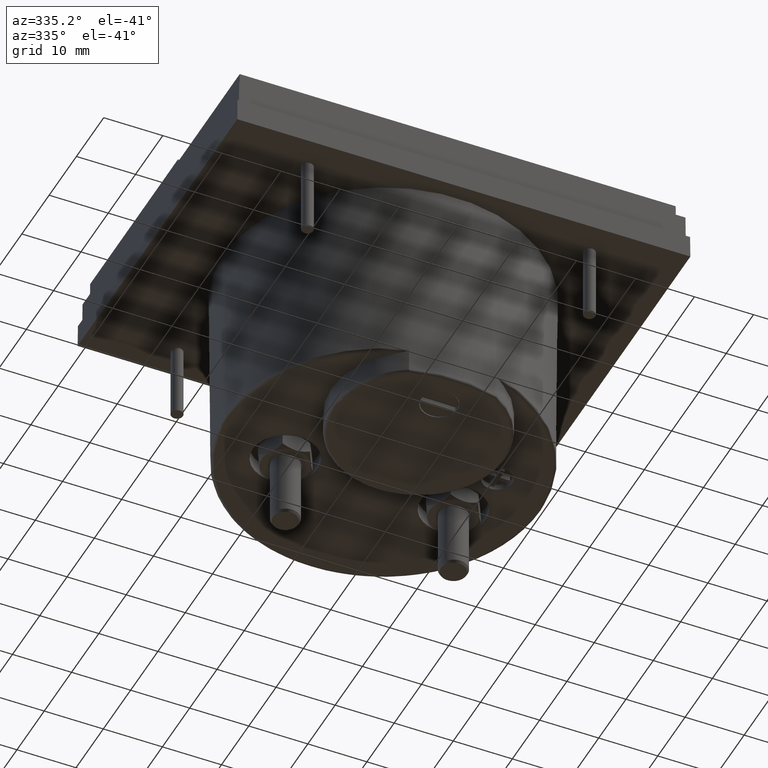
[diagram: clean part render]
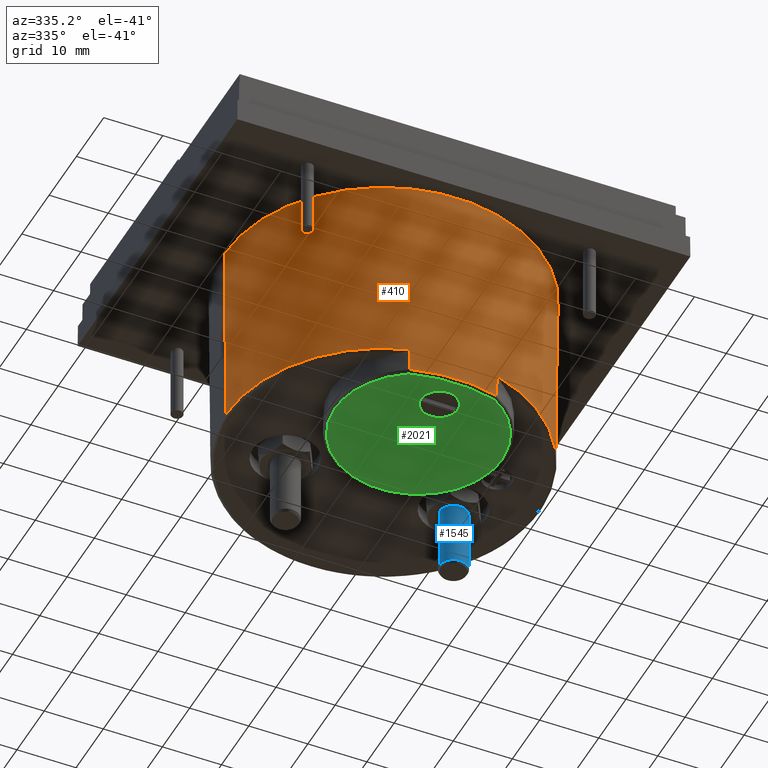
[diagram: same view with three faces highlighted in distinct colors, each labeled with its STEP entity id]
A machine part, auxiliary view with three faces highlighted in distinct colors.
Their STEP definitions:

[orange] entity #410 — the highlighted conical surface has half-angle 0.5 deg.
#19 = CARTESIAN_POINT ( 'NONE',  ( 0.2917813320034607916, -0.1900923783822273117, -1.710408002665992244 ) ) ;
#79 = DIRECTION ( 'NONE',  ( -1.000000000000000000, 0.000000000000000000, -7.553504680715287121E-15 ) ) ;
#128 = CONICAL_SURFACE ( 'NONE', #418, 1.059999999999999831, 0.008726646249999938515 ) ;
#288 = CARTESIAN_POINT ( 'NONE',  ( -0.2923328206291994635, -0.1913633574854115560, -1.552927687706716853 ) ) ;
#410 = ADVANCED_FACE ( 'NONE', ( #3003 ), #128, .T. ) ;
#418 = AXIS2_PLACEMENT_3D ( 'NONE', #1137, #2043, #5759 ) ;
#428 = CARTESIAN_POINT ( 'NONE',  ( 0.2923328206292112874, -0.1913633574854087249, -1.552927687706716853 ) ) ;
#957 = DIRECTION ( 'NONE',  ( 1.000000000000000000, 0.000000000000000000, 0.000000000000000000 ) ) ;
#1137 = CARTESIAN_POINT ( 'NONE',  ( 8.195543980992789655E-16, 0.8159055118110236648, -0.2732283464567021314 ) ) ;
#1157 = VERTEX_POINT ( 'NONE', #5092 ) ;
#1342 = CARTESIAN_POINT ( 'NONE',  ( 0.2919650909610897460, -0.1905160636664051943, -1.657914564347348074 ) ) ;
#1424 = ORIENTED_EDGE ( 'NONE', *, *, #3568, .T. ) ;
#1431 = EDGE_CURVE ( 'NONE', #2227, #1470, #4979, .T. ) ;
#1452 = EDGE_CURVE ( 'NONE', #2349, #1157, #1677, .T. ) ;
#1470 = VERTEX_POINT ( 'NONE', #5003 ) ;
#1479 = CARTESIAN_POINT ( 'NONE',  ( -0.2923328206291994635, -0.1913633574854115560, -1.552927687706716853 ) ) ;
#1648 = CARTESIAN_POINT ( 'NONE',  ( 1.060000000000000719, 0.8159055118110236648, -0.2732283464567021314 ) ) ;
#1677 = LINE ( 'NONE', #3967, #4098 ) ;
#1710 = DIRECTION ( 'NONE',  ( -0.008726535488402603624, 1.068692375351803275E-18, 0.9999619230642582401 ) ) ;
#1774 = CARTESIAN_POINT ( 'NONE',  ( 8.195543980992795572E-16, 0.8159055118110236648, -1.710408002667415772 ) ) ;
#1813 = AXIS2_PLACEMENT_3D ( 'NONE', #5225, #4695, #1892 ) ;
#1855 = ORIENTED_EDGE ( 'NONE', *, *, #4842, .T. ) ;
#1876 = VERTEX_POINT ( 'NONE', #428 ) ;
#1892 = DIRECTION ( 'NONE',  ( -1.000000000000000000, 0.000000000000000000, -7.553504680715287121E-15 ) ) ;
#1977 = VERTEX_POINT ( 'NONE', #3659 ) ;
#2043 = DIRECTION ( 'NONE',  ( -0.000000000000000000, 0.000000000000000000, 1.000000000000000000 ) ) ;
#2119 = ORIENTED_EDGE ( 'NONE', *, *, #2536, .T. ) ;
#2190 = CARTESIAN_POINT ( 'NONE',  ( 0.2917813320034607916, -0.1900923783822273117, -1.710408002665992244 ) ) ;
#2227 = VERTEX_POINT ( 'NONE', #1479 ) ;
#2349 = VERTEX_POINT ( 'NONE', #5247 ) ;
#2395 = VECTOR ( 'NONE', #5792, 39.37007874015748854 ) ;
#2455 = VERTEX_POINT ( 'NONE', #5890 ) ;
#2536 = EDGE_CURVE ( 'NONE', #1470, #5753, #4018, .T. ) ;
#2590 = CIRCLE ( 'NONE', #1813, 1.048832233049751261 ) ;
#2753 = EDGE_CURVE ( 'NONE', #2455, #1977, #4296, .T. ) ;
#3003 = FACE_OUTER_BOUND ( 'NONE', #5448, .T. ) ;
#3284 = DIRECTION ( 'NONE',  ( 0.000000000000000000, 0.000000000000000000, 1.000000000000000000 ) ) ;
#3552 = DIRECTION ( 'NONE',  ( -1.000000000000000000, 0.000000000000000000, 2.868881629112489169E-15 ) ) ;
#3568 = EDGE_CURVE ( 'NONE', #1876, #2455, #2590, .T. ) ;
#3641 = CIRCLE ( 'NONE', #4796, 1.048832233049751261 ) ;
#3659 = CARTESIAN_POINT ( 'NONE',  ( 1.060000000000000719, 0.8159055118110236648, -0.2732283464567021314 ) ) ;
#3692 = EDGE_CURVE ( 'NONE', #1977, #1157, #5089, .T. ) ;
#3878 = CARTESIAN_POINT ( 'NONE',  ( -0.2917813345756032906, -0.1900923776361859163, -1.710408002667384686 ) ) ;
#3967 = CARTESIAN_POINT ( 'NONE',  ( -1.059999999999999165, 0.8159055118110237759, -0.2732283464567021314 ) ) ;
#3994 = CARTESIAN_POINT ( 'NONE',  ( -0.2921489196474683081, -0.1909397236215286953, -1.605421126026988610 ) ) ;
#4018 = CIRCLE ( 'NONE', #5471, 1.047457923163013005 ) ;
#4098 = VECTOR ( 'NONE', #1710, 39.37007874015748854 ) ;
#4195 = ORIENTED_EDGE ( 'NONE', *, *, #1452, .F. ) ;
#4296 = LINE ( 'NONE', #1648, #2395 ) ;
#4695 = DIRECTION ( 'NONE',  ( 0.000000000000000000, 0.000000000000000000, 1.000000000000000000 ) ) ;
#4767 = ORIENTED_EDGE ( 'NONE', *, *, #3692, .T. ) ;
#4796 = AXIS2_PLACEMENT_3D ( 'NONE', #5552, #3284, #79 ) ;
#4842 = EDGE_CURVE ( 'NONE', #2349, #2227, #3641, .T. ) ;
#4867 = CARTESIAN_POINT ( 'NONE',  ( 0.2921489196474710281, -0.1909397236215279181, -1.605421126027062328 ) ) ;
#4979 = B_SPLINE_CURVE_WITH_KNOTS ( 'NONE', 3,
 ( #288, #3994, #5312, #3878 ),
 .UNSPECIFIED., .F., .F.,
 ( 4, 4 ),
 ( 0.000000000000000000, 1.000000000000000000 ),
 .UNSPECIFIED. ) ;
#5003 = CARTESIAN_POINT ( 'NONE',  ( -0.2917813345756032906, -0.1900923776361859163, -1.710408002667384686 ) ) ;
#5089 = CIRCLE ( 'NONE', #5563, 1.059999999999999831 ) ;
#5092 = CARTESIAN_POINT ( 'NONE',  ( -1.059999999999999165, 0.8159055118110237759, -0.2732283464567021314 ) ) ;
#5094 = DIRECTION ( 'NONE',  ( 0.000000000000000000, -0.000000000000000000, -1.000000000000000000 ) ) ;
#5098 = ORIENTED_EDGE ( 'NONE', *, *, #1431, .T. ) ;
#5133 = ORIENTED_EDGE ( 'NONE', *, *, #5595, .T. ) ;
#5225 = CARTESIAN_POINT ( 'NONE',  ( 8.195543980992795572E-16, 0.8159055118110236648, -1.552927687706768367 ) ) ;
#5247 = CARTESIAN_POINT ( 'NONE',  ( -1.048832233049750373, 0.8159055118110237759, -1.552927687706768367 ) ) ;
#5312 = CARTESIAN_POINT ( 'NONE',  ( -0.2919650909610871370, -0.1905160636664066931, -1.657914564347200415 ) ) ;
#5429 = B_SPLINE_CURVE_WITH_KNOTS ( 'NONE', 3,
 ( #2190, #1342, #4867, #5845 ),
 .UNSPECIFIED., .F., .F.,
 ( 4, 4 ),
 ( 0.000000000000000000, 1.000000000000000000 ),
 .UNSPECIFIED. ) ;
#5434 = DIRECTION ( 'NONE',  ( 0.000000000000000000, 0.000000000000000000, 1.000000000000000000 ) ) ;
#5448 = EDGE_LOOP ( 'NONE', ( #4195, #1855, #5098, #2119, #5133, #1424, #5776, #4767 ) ) ;
#5471 = AXIS2_PLACEMENT_3D ( 'NONE', #1774, #5434, #3552 ) ;
#5551 = CARTESIAN_POINT ( 'NONE',  ( 8.195543980992789655E-16, 0.8159055118110236648, -0.2732283464567021314 ) ) ;
#5552 = CARTESIAN_POINT ( 'NONE',  ( 8.195543980992795572E-16, 0.8159055118110236648, -1.552927687706768367 ) ) ;
#5563 = AXIS2_PLACEMENT_3D ( 'NONE', #5551, #5094, #957 ) ;
#5595 = EDGE_CURVE ( 'NONE', #5753, #1876, #5429, .T. ) ;
#5753 = VERTEX_POINT ( 'NONE', #19 ) ;
#5759 = DIRECTION ( 'NONE',  ( 1.000000000000000000, 0.000000000000000000, 0.000000000000000000 ) ) ;
#5776 = ORIENTED_EDGE ( 'NONE', *, *, #2753, .T. ) ;
#5792 = DIRECTION ( 'NONE',  ( 0.008726535488402603624, 0.000000000000000000, 0.9999619230642582401 ) ) ;
#5845 = CARTESIAN_POINT ( 'NONE',  ( 0.2923328206292112874, -0.1913633574854087249, -1.552927687706716853 ) ) ;
#5890 = CARTESIAN_POINT ( 'NONE',  ( 1.048832233049751927, 0.8159055118110236648, -1.552927687706768367 ) ) ;

[blue] entity #1545 — the highlighted cylindrical surface (edge-blend (fillet) strip) has radius 2.4 mm, axis along (0, 0, -1).
#56 = VERTEX_POINT ( 'NONE', #2947 ) ;
#67 = AXIS2_PLACEMENT_3D ( 'NONE', #5538, #1038, #4236 ) ;
#81 = EDGE_CURVE ( 'NONE', #2855, #4832, #5050, .T. ) ;
#346 = AXIS2_PLACEMENT_3D ( 'NONE', #2231, #5431, #3605 ) ;
#423 = EDGE_CURVE ( 'NONE', #56, #4832, #3428, .T. ) ;
#512 = AXIS2_PLACEMENT_3D ( 'NONE', #4789, #1630, #2561 ) ;
#672 = EDGE_CURVE ( 'NONE', #5854, #2855, #5210, .T. ) ;
#740 = DIRECTION ( 'NONE',  ( 0.000000000000000000, 0.000000000000000000, -1.000000000000000000 ) ) ;
#1038 = DIRECTION ( 'NONE',  ( 0.000000000000000000, 0.000000000000000000, -1.000000000000000000 ) ) ;
#1545 = ADVANCED_FACE ( 'NONE', ( #4030 ), #1745, .T. ) ;
#1630 = DIRECTION ( 'NONE',  ( -0.000000000000000000, -0.000000000000000000, 1.000000000000000000 ) ) ;
#1745 = CYLINDRICAL_SURFACE ( 'NONE', #346, 0.09448818897637792369 ) ;
#2145 = ORIENTED_EDGE ( 'NONE', *, *, #672, .T. ) ;
#2231 = CARTESIAN_POINT ( 'NONE',  ( 0.5600000000000000533, 1.015905511811023620, -1.391338582677165592 ) ) ;
#2360 = VECTOR ( 'NONE', #740, 39.37007874015748143 ) ;
#2530 = EDGE_LOOP ( 'NONE', ( #4072, #3498, #2145, #4766 ) ) ;
#2561 = DIRECTION ( 'NONE',  ( -1.000000000000000000, 0.000000000000000000, 0.000000000000000000 ) ) ;
#2855 = VERTEX_POINT ( 'NONE', #3603 ) ;
#2947 = CARTESIAN_POINT ( 'NONE',  ( 0.6544881889857209201, 1.015905511811023620, -1.621653543297027156 ) ) ;
#3013 = EDGE_CURVE ( 'NONE', #56, #5854, #4399, .T. ) ;
#3239 = CARTESIAN_POINT ( 'NONE',  ( 0.4655118110236221018, 1.015905511811023620, -1.391338582677165592 ) ) ;
#3331 = DIRECTION ( 'NONE',  ( 0.000000000000000000, 0.000000000000000000, -1.000000000000000000 ) ) ;
#3428 = LINE ( 'NONE', #5273, #2360 ) ;
#3498 = ORIENTED_EDGE ( 'NONE', *, *, #3013, .T. ) ;
#3603 = CARTESIAN_POINT ( 'NONE',  ( 0.4655118110382230889, 1.015905511811023620, -2.055393200712905433 ) ) ;
#3605 = DIRECTION ( 'NONE',  ( -1.000000000000000000, 0.000000000000000000, 0.000000000000000000 ) ) ;
#4030 = FACE_OUTER_BOUND ( 'NONE', #2530, .T. ) ;
#4072 = ORIENTED_EDGE ( 'NONE', *, *, #423, .F. ) ;
#4236 = DIRECTION ( 'NONE',  ( -1.000000000000000000, 0.000000000000000000, 0.000000000000000000 ) ) ;
#4399 = CIRCLE ( 'NONE', #67, 0.09448818898572085290 ) ;
#4725 = CARTESIAN_POINT ( 'NONE',  ( 0.6544881889617769621, 1.015905511811023620, -2.055393200712905433 ) ) ;
#4766 = ORIENTED_EDGE ( 'NONE', *, *, #81, .T. ) ;
#4789 = CARTESIAN_POINT ( 'NONE',  ( 0.5600000000000000533, 1.015905511811023620, -2.055393200712905433 ) ) ;
#4832 = VERTEX_POINT ( 'NONE', #4725 ) ;
#5050 = CIRCLE ( 'NONE', #512, 0.09448818897637792369 ) ;
#5206 = CARTESIAN_POINT ( 'NONE',  ( 0.4655118110142791865, 1.015905511811023620, -1.621653543297027156 ) ) ;
#5210 = LINE ( 'NONE', #3239, #5832 ) ;
#5273 = CARTESIAN_POINT ( 'NONE',  ( 0.6544881889763779492, 1.015905511811023620, -1.391338582677165592 ) ) ;
#5431 = DIRECTION ( 'NONE',  ( 0.000000000000000000, 0.000000000000000000, -1.000000000000000000 ) ) ;
#5538 = CARTESIAN_POINT ( 'NONE',  ( 0.5600000000000000533, 1.015905511811023620, -1.621653543297027156 ) ) ;
#5832 = VECTOR ( 'NONE', #3331, 39.37007874015748143 ) ;
#5854 = VERTEX_POINT ( 'NONE', #5206 ) ;

[green] entity #2021 — the highlighted planar face has unit normal (0, 0, -1).
#17 = CARTESIAN_POINT ( 'NONE',  ( 0.2784116391468618446, 0.7917487179998100588, -1.729921259842519987 ) ) ;
#46 = CARTESIAN_POINT ( 'NONE',  ( 0.4632159169804589416, 0.6189489438061644977, -1.729921259842519765 ) ) ;
#115 = VERTEX_POINT ( 'NONE', #749 ) ;
#135 = CARTESIAN_POINT ( 'NONE',  ( -0.3046719549918760483, -0.1598963937713745731, -1.729921259842519765 ) ) ;
#153 = CARTESIAN_POINT ( 'NONE',  ( -0.5162732539761263340, 0.5193410385665275797, -1.729921259842519543 ) ) ;
#188 = CARTESIAN_POINT ( 'NONE',  ( -0.5111531032131235719, 0.5314360546599125046, -1.729921259842519765 ) ) ;
#226 = CARTESIAN_POINT ( 'NONE',  ( -0.5559275436765340750, 0.2600819708388913409, -1.729921259842519543 ) ) ;
#245 = CARTESIAN_POINT ( 'NONE',  ( -0.3707215358500061675, 0.7252504491294256006, -1.729921259842519543 ) ) ;
#248 = CARTESIAN_POINT ( 'NONE',  ( 0.5559281764014007976, 0.2600811416672272891, -1.729921259842519987 ) ) ;
#257 = CARTESIAN_POINT ( 'NONE',  ( -0.5071818669050656148, 0.07045911118559929076, -1.729921259842520653 ) ) ;
#279 = CARTESIAN_POINT ( 'NONE',  ( -0.4046437012571690861, 0.6919997576043305232, -1.729921259842520209 ) ) ;
#284 = EDGE_CURVE ( 'NONE', #115, #4941, #3316, .T. ) ;
#307 = CARTESIAN_POINT ( 'NONE',  ( 0.4046586754462188629, 0.6919834367686185095, -1.729921259842519543 ) ) ;
#311 =( BOUNDED_CURVE ( )  B_SPLINE_CURVE ( 3, ( #4753, #3910, #657, #3036 ),
 .UNSPECIFIED., .F., .T. ) 
 B_SPLINE_CURVE_WITH_KNOTS ( ( 4, 4 ),
 ( 0.000000000000000000, 1.000000000000000000 ),
 .UNSPECIFIED. ) 
 CURVE ( )  GEOMETRIC_REPRESENTATION_ITEM ( )  RATIONAL_B_SPLINE_CURVE ( ( 1.000000000000000000, 0.9738374590795306762, 0.9738374590795306762, 1.000000000000000000 ) ) 
 REPRESENTATION_ITEM ( '' )  );
#320 = CARTESIAN_POINT ( 'NONE',  ( 8.280914230794803119E-16, 0.006062992125986221142, -1.729921259842519765 ) ) ;
#337 = CARTESIAN_POINT ( 'NONE',  ( 0.5492121690034023063, 0.4061655057373255162, -1.729921259842519987 ) ) ;
#371 = CARTESIAN_POINT ( 'NONE',  ( 0.2850984519037063625, -0.1715343669053077391, -1.729921259842519765 ) ) ;
#377 = CARTESIAN_POINT ( 'NONE',  ( -0.2850984519037030873, -0.1715343669053082110, -1.729921259842519543 ) ) ;
#451 = AXIS2_PLACEMENT_3D ( 'NONE', #320, #3101, #2166 ) ;
#479 = CARTESIAN_POINT ( 'NONE',  ( 0.5308997759408522477, 0.4828126066917177162, -1.729921259842520209 ) ) ;
#492 = VERTEX_POINT ( 'NONE', #377 ) ;
#610 = CARTESIAN_POINT ( 'NONE',  ( -0.4469132682528539346, 0.6419661101706930495, -1.729921259842519543 ) ) ;
#622 = CARTESIAN_POINT ( 'NONE',  ( -0.5578532890915194331, 0.2961417040466628459, -1.729921259842518655 ) ) ;
#643 = CARTESIAN_POINT ( 'NONE',  ( -0.5531693597105632465, 0.3802274642362098445, -1.729921259842520209 ) ) ;
#657 = CARTESIAN_POINT ( 'NONE',  ( 0.09758591273646601005, -0.2256739006444256346, -1.729921259842519765 ) ) ;
#675 = CARTESIAN_POINT ( 'NONE',  ( -0.5547211138111830531, 0.3670245361936928519, -1.729921259842519987 ) ) ;
#685 = CARTESIAN_POINT ( 'NONE',  ( -0.3569580025327451778, -0.1207419695676681115, -1.729921259842519987 ) ) ;
#712 = CARTESIAN_POINT ( 'NONE',  ( -0.3637847840364891172, -0.1149661509882335259, -1.729921259842519987 ) ) ;
#732 = CARTESIAN_POINT ( 'NONE',  ( -0.5309052507499022466, 0.4827986277722621233, -1.729921259842519765 ) ) ;
#738 = AXIS2_PLACEMENT_3D ( 'NONE', #5568, #3687, #2792 ) ;
#743 = CIRCLE ( 'NONE', #451, 0.1220472440944882081 ) ;
#749 = CARTESIAN_POINT ( 'NONE',  ( -0.1220472440944873754, 0.006062992125986235888, -1.729921259842519765 ) ) ;
#767 = CARTESIAN_POINT ( 'NONE',  ( 0.2279498805972803854, 0.8172056403553688009, -1.729921259842519987 ) ) ;
#769 = CARTESIAN_POINT ( 'NONE',  ( 0.4947949032411810832, 0.04913943881262267110, -1.729921259842519765 ) ) ;
#791 = CARTESIAN_POINT ( 'NONE',  ( 0.5094211242969634013, 0.5353602495337882461, -1.729921259842519765 ) ) ;
#824 = CARTESIAN_POINT ( 'NONE',  ( 0.3749855445142646904, -0.1052805353888566220, -1.729921259842519987 ) ) ;
#835 = EDGE_CURVE ( 'NONE', #2186, #4130, #2987, .T. ) ;
#855 = CARTESIAN_POINT ( 'NONE',  ( 0.4105926562909895106, -0.06986466804695407040, -1.729921259842519765 ) ) ;
#868 = DIRECTION ( 'NONE',  ( 0.000000000000000000, 0.000000000000000000, 1.000000000000000000 ) ) ;
#914 = EDGE_LOOP ( 'NONE', ( #2833, #3500, #3772, #5108 ) ) ;
#927 = CARTESIAN_POINT ( 'NONE',  ( 0.4205163932844234176, 0.6747324704048555111, -1.729921259842519765 ) ) ;
#959 = CARTESIAN_POINT ( 'NONE',  ( 0.5111579040380861416, 0.5314260677868292149, -1.729921259842519765 ) ) ;
#1078 = CARTESIAN_POINT ( 'NONE',  ( -0.4105869759054955326, -0.06986985635695400210, -1.729921259842519987 ) ) ;
#1107 = CARTESIAN_POINT ( 'NONE',  ( -0.3503656464692357919, -0.1261740691385770663, -1.729921259842519099 ) ) ;
#1117 = EDGE_LOOP ( 'NONE', ( #2750, #2428 ) ) ;
#1128 = CARTESIAN_POINT ( 'NONE',  ( -0.06111018933968079270, 0.8625285072764327099, -1.729921259842519543 ) ) ;
#1140 = CARTESIAN_POINT ( 'NONE',  ( -0.5449416947976087888, 0.1880261580827267132, -1.729921259842519765 ) ) ;
#1158 = CARTESIAN_POINT ( 'NONE',  ( 0.04373138295215334842, 0.8645826277998841514, -1.729921259842519765 ) ) ;
#1183 = CARTESIAN_POINT ( 'NONE',  ( -0.4578612354769924786, 0.6267896756079621712, -1.729921259842519765 ) ) ;
#1212 = CARTESIAN_POINT ( 'NONE',  ( -0.5514191479538836926, 0.3932369282211208295, -1.729921259842519543 ) ) ;
#1251 = CARTESIAN_POINT ( 'NONE',  ( 0.5146013176668455813, 0.5233800637701235825, -1.729921259842520209 ) ) ;
#1278 = CARTESIAN_POINT ( 'NONE',  ( 0.4013232050953604024, 0.6954690726011909518, -1.729921259842519987 ) ) ;
#1322 = CARTESIAN_POINT ( 'NONE',  ( 8.280914230794803119E-16, 0.006062992125986221142, -1.729921259842519765 ) ) ;
#1384 = CARTESIAN_POINT ( 'NONE',  ( 0.5578527650962981088, 0.3079628240951637341, -1.729921259842519765 ) ) ;
#1416 = CARTESIAN_POINT ( 'NONE',  ( 0.09617240162983460572, 0.8574817885019139219, -1.729921259842519987 ) ) ;
#1530 = B_SPLINE_CURVE_WITH_KNOTS ( 'NONE', 3,
 ( #3464, #135, #4843, #1107, #685, #1986, #712, #2019, #2943, #1078, #4751, #3823, #2557, #2531, #3377, #4386, #257, #2109, #4360, #1140, #1653, #3941, #226, #1595, #622, #5705 ),
 .UNSPECIFIED., .F., .F.,
 ( 4, 1, 2, 2, 1, 1, 2, 2, 2, 2, 2, 2, 1, 2, 4 ),
 ( 0.000000000000000000, 0.02461146697064364730, 0.03076433371330454178, 0.03384076708463498728, 0.03691720045596542932, 0.04922293394128728766, 0.06152866742660913907, 0.06768153416927004395, 0.07383440091193095578, 0.09844586788257450594, 0.1476688018238616618, 0.1599745353091834577, 0.1722802687945052258, 0.1845860022798270217, 0.1968917357651487898 ),
 .UNSPECIFIED. ) ;
#1555 = CARTESIAN_POINT ( 'NONE',  ( -0.1800498150495632721, 0.8359804953277694128, -1.729921259842519987 ) ) ;
#1557 = CARTESIAN_POINT ( 'NONE',  ( 0.4341073993217741678, -0.04244827165029626398, -1.729921259842519765 ) ) ;
#1584 = CARTESIAN_POINT ( 'NONE',  ( -0.2784112776547912893, 0.7917479776872771158, -1.729921259842519765 ) ) ;
#1586 = CARTESIAN_POINT ( 'NONE',  ( 0.5057296819286272171, 0.07121660616023922641, -1.729921259842519765 ) ) ;
#1595 = CARTESIAN_POINT ( 'NONE',  ( -0.5574860520100605177, 0.2843904890912331007, -1.729921259842519987 ) ) ;
#1612 = CARTESIAN_POINT ( 'NONE',  ( -0.5542194313498487457, 0.3715608412808996674, -1.729921259842519543 ) ) ;
#1643 = CARTESIAN_POINT ( 'NONE',  ( -0.2108204115421115077, 0.8247026486556551239, -1.729921259842519765 ) ) ;
#1653 = CARTESIAN_POINT ( 'NONE',  ( -0.5496553650703082106, 0.2118998053346380639, -1.729921259842519765 ) ) ;
#1668 = CARTESIAN_POINT ( 'NONE',  ( -0.2448975780162089277, 0.8092741465943350532, -1.729921259842519765 ) ) ;
#1701 = CARTESIAN_POINT ( 'NONE',  ( 0.2449022533810961966, 0.8092710863124019660, -1.729921259842519987 ) ) ;
#1738 = CARTESIAN_POINT ( 'NONE',  ( 0.08714107747869900833, 0.8589709299519333596, -1.729921259842519765 ) ) ;
#1821 = EDGE_CURVE ( 'NONE', #4130, #2637, #2098, .T. ) ;
#1852 = FACE_OUTER_BOUND ( 'NONE', #914, .T. ) ;
#1986 = CARTESIAN_POINT ( 'NONE',  ( -0.3592761074246217934, -0.1188021985231957900, -1.729921259842519765 ) ) ;
#2006 = CARTESIAN_POINT ( 'NONE',  ( -0.1933169132671538615, 0.8313329520611734136, -1.729921259842519765 ) ) ;
#2019 = CARTESIAN_POINT ( 'NONE',  ( -0.3749748015643580290, -0.1052912435032638400, -1.729921259842519765 ) ) ;
#2021 = ADVANCED_FACE ( 'NONE', ( #5025, #1852 ), #4166, .T. ) ;
#2036 = CARTESIAN_POINT ( 'NONE',  ( -0.5578556466301501926, 0.3261612272360128184, -1.729921259842519987 ) ) ;
#2096 = CARTESIAN_POINT ( 'NONE',  ( -0.5578530324145267727, 0.3079628240903596326, -1.729921259842519765 ) ) ;
#2098 = B_SPLINE_CURVE_WITH_KNOTS ( 'NONE', 3,
 ( #5304, #3960, #4835, #248, #2998, #5362, #3061, #2099, #5725, #3932, #1586, #769, #2613, #4437, #3986, #1557, #3394, #5237, #855, #5962, #824, #2641, #4109, #5047, #3119, #3539, #3149, #371 ),
 .UNSPECIFIED., .F., .F.,
 ( 4, 2, 1, 2, 2, 2, 2, 2, 2, 2, 1, 1, 2, 2, 1, 4 ),
 ( 0.8031143560002526050, 0.8154197087502368380, 0.8277250615002210710, 0.8400304142502053040, 0.8523357670001895370, 0.8769464725001580030, 0.9015571780001264690, 0.9261678835000949350, 0.9323205598750871070, 0.9384732362500791680, 0.9507785890000632900, 0.9630839417500475230, 0.9661602799375436090, 0.9692366181250395840, 0.9753892945000317560, 1.000000000000000000 ),
 .UNSPECIFIED. ) ;
#2099 = CARTESIAN_POINT ( 'NONE',  ( 0.5421478568420444732, 0.1759486054669784638, -1.729921259842519987 ) ) ;
#2109 = CARTESIAN_POINT ( 'NONE',  ( -0.5262486565778936587, 0.1163849492960870730, -1.729921259842519765 ) ) ;
#2127 = CARTESIAN_POINT ( 'NONE',  ( -0.1668717788632499144, 0.8402914102649983175, -1.729921259842520209 ) ) ;
#2154 = CARTESIAN_POINT ( 'NONE',  ( 0.5514183633966194265, 0.3932375107227552569, -1.729921259842519987 ) ) ;
#2166 = DIRECTION ( 'NONE',  ( 1.000000000000000000, 0.000000000000000000, 0.000000000000000000 ) ) ;
#2184 = CARTESIAN_POINT ( 'NONE',  ( 0.5578554813226432874, 0.3261679837745470878, -1.729921259842519765 ) ) ;
#2186 = VERTEX_POINT ( 'NONE', #5356 ) ;
#2330 = CARTESIAN_POINT ( 'NONE',  ( 0.2532177796681681636, 0.8051240943337644174, -1.729921259842519543 ) ) ;
#2428 = ORIENTED_EDGE ( 'NONE', *, *, #284, .T. ) ;
#2460 = CARTESIAN_POINT ( 'NONE',  ( -0.5408475217415081859, 0.4490541014473227732, -1.729921259842519765 ) ) ;
#2509 = EDGE_CURVE ( 'NONE', #4941, #115, #743, .T. ) ;
#2520 = CARTESIAN_POINT ( 'NONE',  ( 0.01753289827940306134, 0.8658150469422906115, -1.729921259842520653 ) ) ;
#2531 = CARTESIAN_POINT ( 'NONE',  ( -0.4378941650519823647, -0.03770650828356280487, -1.729921259842519987 ) ) ;
#2548 = CARTESIAN_POINT ( 'NONE',  ( -0.5539685153702562648, 0.3737085668867606847, -1.729921259842519765 ) ) ;
#2557 = CARTESIAN_POINT ( 'NONE',  ( -0.4341024941384786784, -0.04245539842676621795, -1.729921259842519987 ) ) ;
#2581 = CARTESIAN_POINT ( 'NONE',  ( -0.5037361872711277888, 0.5478220202790574644, -1.729921259842520209 ) ) ;
#2611 = CARTESIAN_POINT ( 'NONE',  ( 0.4110570817811637356, 0.6851271830290081022, -1.729921259842520209 ) ) ;
#2613 = CARTESIAN_POINT ( 'NONE',  ( 0.4699929154693067712, 0.006445338716108923137, -1.729921259842519765 ) ) ;
#2637 = VERTEX_POINT ( 'NONE', #3695 ) ;
#2639 = CARTESIAN_POINT ( 'NONE',  ( 0.5542214564751800632, 0.3715427523990588732, -1.729921259842519765 ) ) ;
#2641 = CARTESIAN_POINT ( 'NONE',  ( 0.3637886011022494204, -0.1149621385897299369, -1.729921259842519765 ) ) ;
#2719 = DIRECTION ( 'NONE',  ( 1.000000000000000000, 0.000000000000000000, 0.000000000000000000 ) ) ;
#2750 = ORIENTED_EDGE ( 'NONE', *, *, #2509, .T. ) ;
#2780 = CARTESIAN_POINT ( 'NONE',  ( 0.4780871926331670130, 0.5960003516978976679, -1.729921259842519987 ) ) ;
#2792 = DIRECTION ( 'NONE',  ( -1.000000000000000000, 0.000000000000000000, -0.000000000000000000 ) ) ;
#2805 = CARTESIAN_POINT ( 'NONE',  ( 0.5531699574907322781, 0.3802188712790045000, -1.729921259842519987 ) ) ;
#2833 = ORIENTED_EDGE ( 'NONE', *, *, #3705, .T. ) ;
#2933 = CARTESIAN_POINT ( 'NONE',  ( -0.4632048780282028155, 0.6189657709939625496, -1.729921259842519765 ) ) ;
#2943 = CARTESIAN_POINT ( 'NONE',  ( -0.3943817670983291168, -0.08711331220224020899, -1.729921259842519765 ) ) ;
#2967 = CARTESIAN_POINT ( 'NONE',  ( -0.03500519261557610146, 0.8649927078586884255, -1.729921259842519987 ) ) ;
#2987 = B_SPLINE_CURVE_WITH_KNOTS ( 'NONE', 3,
 ( #2096, #2036, #3392, #675, #1612, #2548, #643, #1212, #4741, #2460, #732, #153, #2996, #188, #3958, #2581, #4410, #5234, #2933, #1183, #610, #3480, #4833, #3843, #279, #3023, #4862, #245, #3930, #3505, #5784, #1584, #4350, #1668, #5697, #1643, #2006, #1555, #3450, #2127, #5302, #4771, #5264, #5723, #5812, #3423, #5360, #1128, #2967, #4808, #2520, #1158, #4899, #3739, #1738, #3984, #1416, #3224, #5840, #4607, #3255, #5592, #4958, #4158, #767, #1701, #2330, #17, #5066, #3571, #3703, #5876, #5393, #1278, #307, #2611, #927, #5554, #3537, #4435, #46, #2780, #4928, #5097, #791, #959, #1251, #3059, #479, #5906, #337, #2154, #2805, #3091, #2639, #4465, #4635, #2184, #1384 ),
 .UNSPECIFIED., .F., .F.,
 ( 4, 1, 2, 2, 1, 2, 2, 2, 2, 1, 2, 2, 1, 1, 2, 2, 2, 2, 2, 2, 1, 2, 2, 1, 1, 2, 2, 1, 2, 2, 1, 1, 2, 2, 1, 1, 2, 2, 1, 2, 2, 2, 2, 2, 2, 1, 1, 2, 2, 1, 2, 2, 2, 2, 1, 2, 2, 1, 4 ),
 ( 0.1968917357651487898, 0.2158361926474962333, 0.2182042497577896811, 0.2205723068680831289, 0.2253084210886699690, 0.2347806495298437046, 0.2726695632945385639, 0.2774056775151254595, 0.2821417917357122995, 0.2916140201768859241, 0.3105584770592332289, 0.3200307055004067980, 0.3295029339415804781, 0.3389751623827541027, 0.3437112766033408873, 0.3484473908239277273, 0.3673918477062747545, 0.3863363045886217817, 0.4052807614709688089, 0.4147529899121422670, 0.4242252183533158361, 0.4336974467944892941, 0.4384335610150760232, 0.4431696752356627522, 0.4621141321180098904, 0.4668502463385966195, 0.4692183034488899840, 0.4715863605591834040, 0.4810585890003568066, 0.5000030458827037227, 0.5189475027650507499, 0.5284197312062240970, 0.5307877883165175170, 0.5331558454268108260, 0.5378919596473975551, 0.5568364165297445822, 0.5615725307503314223, 0.5663086449709180403, 0.5757808734120914984, 0.5852531018532648455, 0.5947253302944381925, 0.6136697871767851087, 0.6326142440591319138, 0.6515587009414787190, 0.6562948151620655590, 0.6610309293826521770, 0.6705031578238256351, 0.6799753862649989822, 0.6894476147061723292, 0.7083920715885190234, 0.7178643000296922594, 0.7226004142502788774, 0.7273365284708654954, 0.7652254422355588837, 0.7746976706767323417, 0.7794337848973191818, 0.7818018420076124908, 0.7841698991179057998, 0.8031143560002524939 ),
 .UNSPECIFIED. ) ;
#2996 = CARTESIAN_POINT ( 'NONE',  ( -0.5145989128558021708, 0.5233841489316164441, -1.729921259842519765 ) ) ;
#2998 = CARTESIAN_POINT ( 'NONE',  ( 0.5535814270956824767, 0.2358911970393674506, -1.729921259842520209 ) ) ;
#3023 = CARTESIAN_POINT ( 'NONE',  ( -0.4013161979010140823, 0.6954770777209283716, -1.729921259842519987 ) ) ;
#3036 = CARTESIAN_POINT ( 'NONE',  ( 0.2850984519037063625, -0.1715343669053077391, -1.729921259842519765 ) ) ;
#3059 = CARTESIAN_POINT ( 'NONE',  ( 0.5162746765933419191, 0.5193393019199351590, -1.729921259842519765 ) ) ;
#3061 = CARTESIAN_POINT ( 'NONE',  ( 0.5449386585750024548, 0.1880125644165377696, -1.729921259842519765 ) ) ;
#3091 = CARTESIAN_POINT ( 'NONE',  ( 0.5539699878212710482, 0.3736944441522656590, -1.729921259842519765 ) ) ;
#3101 = DIRECTION ( 'NONE',  ( 0.000000000000000000, 0.000000000000000000, 1.000000000000000000 ) ) ;
#3119 = CARTESIAN_POINT ( 'NONE',  ( 0.3503666352459027244, -0.1261738867762767780, -1.729921259842519987 ) ) ;
#3149 = CARTESIAN_POINT ( 'NONE',  ( 0.3046810227092688339, -0.1598910023066530128, -1.729921259842519543 ) ) ;
#3224 = CARTESIAN_POINT ( 'NONE',  ( 0.1185876700928244071, 0.8534668723544326374, -1.729921259842519765 ) ) ;
#3255 = CARTESIAN_POINT ( 'NONE',  ( 0.1755682663203856353, 0.8374864241746602378, -1.729921259842520209 ) ) ;
#3316 = CIRCLE ( 'NONE', #4275, 0.1220472440944882081 ) ;
#3377 = CARTESIAN_POINT ( 'NONE',  ( -0.4564533307572894438, -0.01366489808143204164, -1.729921259842520653 ) ) ;
#3392 = CARTESIAN_POINT ( 'NONE',  ( -0.5568531749478191628, 0.3466078393764601140, -1.729921259842519987 ) ) ;
#3394 = CARTESIAN_POINT ( 'NONE',  ( 0.4263602139907402555, -0.05183264629378026012, -1.729921259842520653 ) ) ;
#3423 = CARTESIAN_POINT ( 'NONE',  ( -0.08279427813920332835, 0.8596409631065513590, -1.729921259842519987 ) ) ;
#3432 = CARTESIAN_POINT ( 'NONE',  ( 0.1220472440944890408, 0.006062992125986221142, -1.729921259842519765 ) ) ;
#3450 = CARTESIAN_POINT ( 'NONE',  ( -0.1755500365589086065, 0.8374923329404579952, -1.729921259842519765 ) ) ;
#3464 = CARTESIAN_POINT ( 'NONE',  ( -0.2850984519037030873, -0.1715343669053082110, -1.729921259842519543 ) ) ;
#3480 = CARTESIAN_POINT ( 'NONE',  ( -0.4355933780441317293, 0.6568522978123959577, -1.729921259842519765 ) ) ;
#3500 = ORIENTED_EDGE ( 'NONE', *, *, #835, .T. ) ;
#3505 = CARTESIAN_POINT ( 'NONE',  ( -0.3262118424303706021, 0.7608939309011363283, -1.729921259842519765 ) ) ;
#3537 = CARTESIAN_POINT ( 'NONE',  ( 0.4469120564729485157, 0.6419669069878357615, -1.729921259842519987 ) ) ;
#3539 = CARTESIAN_POINT ( 'NONE',  ( 0.3281528317616765889, -0.1439187337787225518, -1.729921259842519543 ) ) ;
#3571 = CARTESIAN_POINT ( 'NONE',  ( 0.3262143063028021261, 0.7608911136477721771, -1.729921259842519765 ) ) ;
#3687 = DIRECTION ( 'NONE',  ( 0.000000000000000000, 0.000000000000000000, -1.000000000000000000 ) ) ;
#3695 = CARTESIAN_POINT ( 'NONE',  ( 0.2850984519037063625, -0.1715343669053077391, -1.729921259842519765 ) ) ;
#3703 = CARTESIAN_POINT ( 'NONE',  ( 0.3414980424565469130, 0.7494808108347704723, -1.729921259842519543 ) ) ;
#3705 = EDGE_CURVE ( 'NONE', #492, #2186, #1530, .T. ) ;
#3739 = CARTESIAN_POINT ( 'NONE',  ( 0.08280773223808796102, 0.8596387012794530769, -1.729921259842519543 ) ) ;
#3772 = ORIENTED_EDGE ( 'NONE', *, *, #1821, .T. ) ;
#3823 = CARTESIAN_POINT ( 'NONE',  ( -0.4263594767665864205, -0.05183431491872780156, -1.729921259842519765 ) ) ;
#3843 = CARTESIAN_POINT ( 'NONE',  ( -0.4110474923306973727, 0.6851371576255347318, -1.729921259842519987 ) ) ;
#3910 = CARTESIAN_POINT ( 'NONE',  ( -0.09758591273646215203, -0.2256739006444258011, -1.729921259842519765 ) ) ;
#3930 = CARTESIAN_POINT ( 'NONE',  ( -0.3414885283791865289, 0.7494875072691375983, -1.729921259842519765 ) ) ;
#3932 = CARTESIAN_POINT ( 'NONE',  ( 0.5246668089065371632, 0.1168311754541911246, -1.729921259842519543 ) ) ;
#3941 = CARTESIAN_POINT ( 'NONE',  ( -0.5535802448582146651, 0.2358821703366568712, -1.729921259842519765 ) ) ;
#3958 = CARTESIAN_POINT ( 'NONE',  ( -0.5094131337069144339, 0.5353777951022787862, -1.729921259842519765 ) ) ;
#3960 = CARTESIAN_POINT ( 'NONE',  ( 0.5578525145865370627, 0.2961376810933934456, -1.729921259842519765 ) ) ;
#3984 = CARTESIAN_POINT ( 'NONE',  ( 0.08942871665305217321, 0.8586047682550356219, -1.729921259842519765 ) ) ;
#3986 = CARTESIAN_POINT ( 'NONE',  ( 0.4379005261257206683, -0.03769751449773028895, -1.729921259842519543 ) ) ;
#4109 = CARTESIAN_POINT ( 'NONE',  ( 0.3592767701022202553, -0.1188012440786841567, -1.729921259842519543 ) ) ;
#4130 = VERTEX_POINT ( 'NONE', #5177 ) ;
#4158 = CARTESIAN_POINT ( 'NONE',  ( 0.2108162006055097903, 0.8247046514292025732, -1.729921259842519765 ) ) ;
#4166 = PLANE ( 'NONE',  #738 ) ;
#4275 = AXIS2_PLACEMENT_3D ( 'NONE', #1322, #868, #2719 ) ;
#4350 = CARTESIAN_POINT ( 'NONE',  ( -0.2531968400388904250, 0.8051353407610413182, -1.729921259842519987 ) ) ;
#4360 = CARTESIAN_POINT ( 'NONE',  ( -0.5421477564552967809, 0.1759511225539650559, -1.729921259842519987 ) ) ;
#4386 = CARTESIAN_POINT ( 'NONE',  ( -0.4699996097337878487, 0.006456603573829267952, -1.729921259842519543 ) ) ;
#4410 = CARTESIAN_POINT ( 'NONE',  ( -0.4917941461606269993, 0.5723903251466355702, -1.729921259842519543 ) ) ;
#4435 = CARTESIAN_POINT ( 'NONE',  ( 0.4578648958207407471, 0.6267833059787897287, -1.729921259842520209 ) ) ;
#4437 = CARTESIAN_POINT ( 'NONE',  ( 0.4564638308376035014, -0.01365087958077836755, -1.729921259842519987 ) ) ;
#4465 = CARTESIAN_POINT ( 'NONE',  ( 0.5547228718304200168, 0.3670105149721711313, -1.729921259842519987 ) ) ;
#4607 = CARTESIAN_POINT ( 'NONE',  ( 0.1668823573575099750, 0.8402876519701140134, -1.729921259842519543 ) ) ;
#4635 = CARTESIAN_POINT ( 'NONE',  ( 0.5568537746830958257, 0.3466106834279371607, -1.729921259842519543 ) ) ;
#4741 = CARTESIAN_POINT ( 'NONE',  ( -0.5492132348853250301, 0.4061614000640709210, -1.729921259842519765 ) ) ;
#4751 = CARTESIAN_POINT ( 'NONE',  ( -0.4223488473022342649, -0.05653027896468099806, -1.729921259842519987 ) ) ;
#4753 = CARTESIAN_POINT ( 'NONE',  ( -0.2850984519037030873, -0.1715343669053082110, -1.729921259842519543 ) ) ;
#4771 = CARTESIAN_POINT ( 'NONE',  ( -0.1185936748325263496, 0.8534649852564512029, -1.729921259842519765 ) ) ;
#4808 = CARTESIAN_POINT ( 'NONE',  ( -0.01751599282742464028, 0.8658142968668568473, -1.729921259842519765 ) ) ;
#4833 = CARTESIAN_POINT ( 'NONE',  ( -0.4205137078217706659, 0.6747344150619550840, -1.729921259842519987 ) ) ;
#4835 = CARTESIAN_POINT ( 'NONE',  ( 0.5574850717252709531, 0.2843713376216652766, -1.729921259842519765 ) ) ;
#4843 = CARTESIAN_POINT ( 'NONE',  ( -0.3281418903926852648, -0.1439251144930457638, -1.729921259842519765 ) ) ;
#4862 = CARTESIAN_POINT ( 'NONE',  ( -0.3846830477700832751, 0.7124157254877633294, -1.729921259842519987 ) ) ;
#4899 = CARTESIAN_POINT ( 'NONE',  ( 0.07196977623773839761, 0.8612439118014298955, -1.729921259842519765 ) ) ;
#4928 = CARTESIAN_POINT ( 'NONE',  ( 0.4917896167922804485, 0.5723980352109423464, -1.729921259842519765 ) ) ;
#4941 = VERTEX_POINT ( 'NONE', #3432 ) ;
#4958 = CARTESIAN_POINT ( 'NONE',  ( 0.1933199061978295996, 0.8313325765647699983, -1.729921259842519987 ) ) ;
#4965 = EDGE_CURVE ( 'NONE', #492, #2637, #311, .T. ) ;
#5025 = FACE_BOUND ( 'NONE', #1117, .T. ) ;
#5047 = CARTESIAN_POINT ( 'NONE',  ( 0.3569552959570795325, -0.1207440779670721775, -1.729921259842519765 ) ) ;
#5066 = CARTESIAN_POINT ( 'NONE',  ( 0.2946905351057015343, 0.7820104301070144315, -1.729921259842519765 ) ) ;
#5097 = CARTESIAN_POINT ( 'NONE',  ( 0.5037387637110016803, 0.5478151321559544540, -1.729921259842519543 ) ) ;
#5108 = ORIENTED_EDGE ( 'NONE', *, *, #4965, .F. ) ;
#5177 = CARTESIAN_POINT ( 'NONE',  ( 0.5578527650962981088, 0.3079628240951637341, -1.729921259842519765 ) ) ;
#5234 = CARTESIAN_POINT ( 'NONE',  ( -0.4780876603333427122, 0.5959981935562779221, -1.729921259842519987 ) ) ;
#5237 = CARTESIAN_POINT ( 'NONE',  ( 0.4223432529890257525, -0.05653641884475705398, -1.729921259842519765 ) ) ;
#5264 = CARTESIAN_POINT ( 'NONE',  ( -0.09616332891647617898, 0.8574828184179598134, -1.729921259842519987 ) ) ;
#5302 = CARTESIAN_POINT ( 'NONE',  ( -0.1451093435625664674, 0.8470182071990910444, -1.729921259842519765 ) ) ;
#5304 = CARTESIAN_POINT ( 'NONE',  ( 0.5578527650962981088, 0.3079628240951637341, -1.729921259842519765 ) ) ;
#5356 = CARTESIAN_POINT ( 'NONE',  ( -0.5578530324145267727, 0.3079628240903596326, -1.729921259842519765 ) ) ;
#5360 = CARTESIAN_POINT ( 'NONE',  ( -0.07196570972737104110, 0.8612451282077746573, -1.729921259842519765 ) ) ;
#5362 = CARTESIAN_POINT ( 'NONE',  ( 0.5496549698262664929, 0.2119017550646633830, -1.729921259842519099 ) ) ;
#5393 = CARTESIAN_POINT ( 'NONE',  ( 0.3846796127026040901, 0.7124182276492212473, -1.729921259842519765 ) ) ;
#5554 = CARTESIAN_POINT ( 'NONE',  ( 0.4355904224607370367, 0.6568562892909165507, -1.729921259842520209 ) ) ;
#5568 = CARTESIAN_POINT ( 'NONE',  ( 8.195543980992795572E-16, 0.8159055118110236648, -1.729921259842519765 ) ) ;
#5592 = CARTESIAN_POINT ( 'NONE',  ( 0.1800617049861033547, 0.8359768631895958535, -1.729921259842519765 ) ) ;
#5697 = CARTESIAN_POINT ( 'NONE',  ( -0.2279519777867419494, 0.8172051871500233267, -1.729921259842519987 ) ) ;
#5705 = CARTESIAN_POINT ( 'NONE',  ( -0.5578530324145267727, 0.3079628240903596326, -1.729921259842519765 ) ) ;
#5723 = CARTESIAN_POINT ( 'NONE',  ( -0.08941418782320009750, 0.8586068994532343179, -1.729921259842519987 ) ) ;
#5725 = CARTESIAN_POINT ( 'NONE',  ( 0.5326121900827316402, 0.1402244744100988594, -1.729921259842519765 ) ) ;
#5784 = CARTESIAN_POINT ( 'NONE',  ( -0.2946952406408139824, 0.7820072048437116674, -1.729921259842519987 ) ) ;
#5812 = CARTESIAN_POINT ( 'NONE',  ( -0.08712354934586752364, 0.8589736341834568467, -1.729921259842519765 ) ) ;
#5840 = CARTESIAN_POINT ( 'NONE',  ( 0.1451039034907028735, 0.8470190711550076301, -1.729921259842519765 ) ) ;
#5876 = CARTESIAN_POINT ( 'NONE',  ( 0.3707173490877104793, 0.7252544739017006137, -1.729921259842519987 ) ) ;
#5906 = CARTESIAN_POINT ( 'NONE',  ( 0.5408479648057794575, 0.4490573903877145279, -1.729921259842519765 ) ) ;
#5962 = CARTESIAN_POINT ( 'NONE',  ( 0.3943963358633701954, -0.08709909432089575632, -1.729921259842519543 ) ) ;